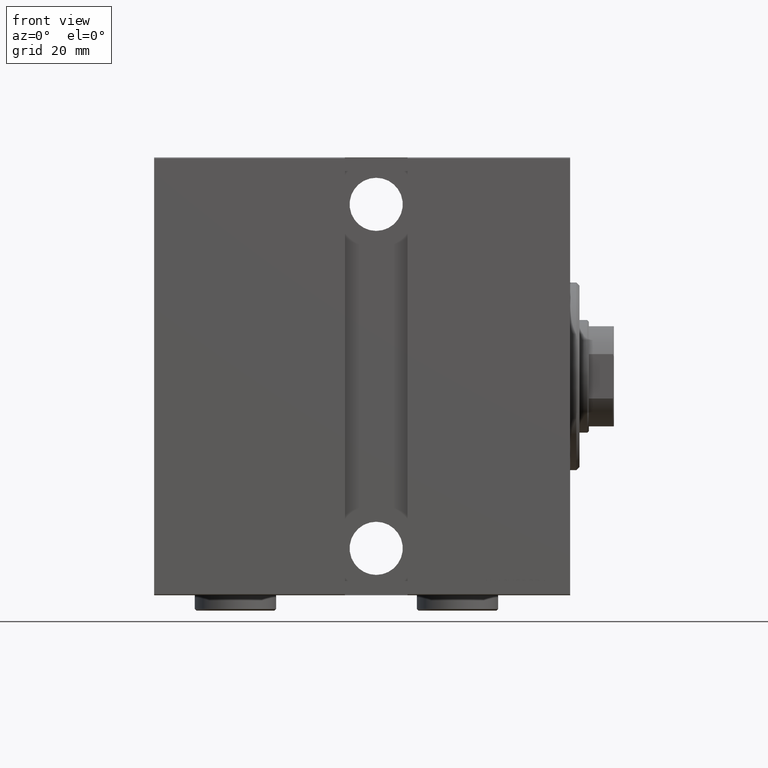
[diagram: clean part render]
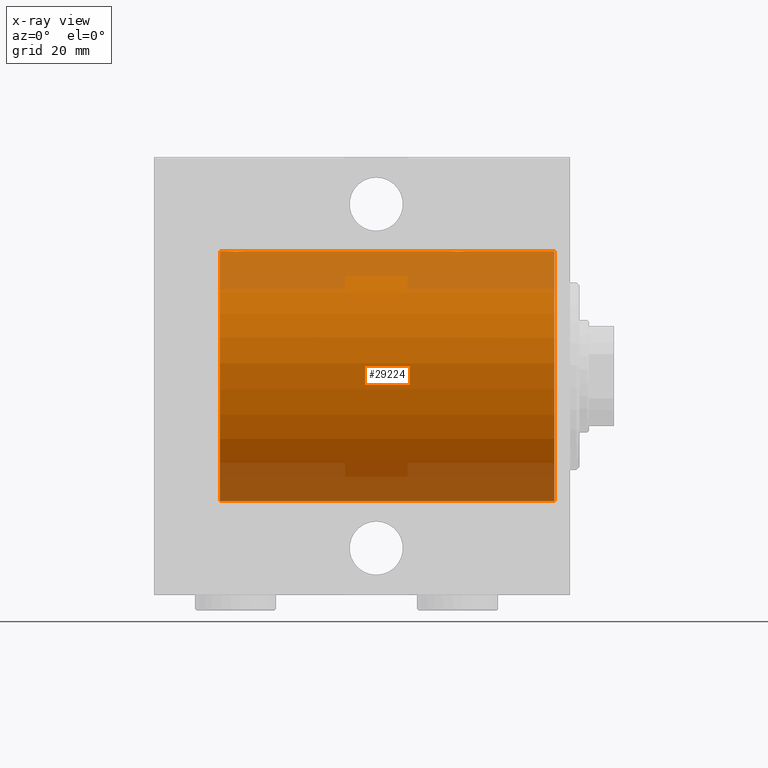
[diagram: x-ray — body ghosted, one internal face saturated and labeled with its STEP entity id]
A machine part, front view, then the same camera in x-ray: the body is ghosted and one INTERNAL B-rep face — a face not visible from any outside direction — is saturated and labeled: STEP entity #29224.
In plain terms, the highlighted cylindrical surface (partial cylindrical patch) has radius 40 mm, axis along (1, 0, -0).
Its self-contained STEP definition (entity closure, byte-faithful):
#48 = ORIENTED_EDGE ( 'NONE', *, *, #10711, .T. ) ;
#215 = CARTESIAN_POINT ( 'NONE',  ( 105.1706818041053992, 2.385749008316982778, 39.92893738690724348 ) ) ;
#352 = CARTESIAN_POINT ( 'NONE',  ( 37.98255211990295521, 2.260036752248975933, 39.93634209860680073 ) ) ;
#442 = CARTESIAN_POINT ( 'NONE',  ( 104.0963550461225395, 0.7792872749133290533, 39.99287049138470707 ) ) ;
#720 = LINE ( 'NONE', #4488, #34736 ) ;
#872 = CARTESIAN_POINT ( 'NONE',  ( 109.2592951265791186, 1.983397227149403141, 39.95103655448513535 ) ) ;
#1323 = B_SPLINE_CURVE_WITH_KNOTS ( 'NONE', 3,
 ( #14442, #34309, #17362, #17800, #37430, #27384, #34096, #38091, #872, #30725, #13795, #37868, #28032, #10005, #23587, #3563, #23816, #37201, #17141, #3337, #16922, #3781, #30511, #215, #40983, #10458, #24045, #37654, #7126, #30951, #442, #14024, #27608, #10681 ),
 .UNSPECIFIED., .F., .F.,
 ( 4, 2, 2, 2, 2, 2, 2, 2, 2, 2, 2, 2, 2, 2, 2, 2, 4 ),
 ( 2.715985185341829715E-18, 0.0005864162728940710331, 0.001172832545788139464, 0.001759248818682207678, 0.002345665091576275459, 0.002932081364470344106, 0.003518497637364412754, 0.004104913910258481402, 0.004691330183152550917, 0.005277746456046619565, 0.005864162728940688213, 0.006450579001834755993, 0.007036995274728823774, 0.007623411547622892422, 0.008209827820516961069, 0.008796244093411030585, 0.009382660366305098365 ),
 .UNSPECIFIED. ) ;
#1470 = VERTEX_POINT ( 'NONE', #3052 ) ;
#1494 = DIRECTION ( 'NONE',  ( -1.000000000000000000, -0.000000000000000000, -0.000000000000000000 ) ) ;
#2403 = CARTESIAN_POINT ( 'NONE',  ( 5.000000000000004441, 4.898587196589413026E-15, -40.00000000000000000 ) ) ;
#2812 = DIRECTION ( 'NONE',  ( 0.000000000000000000, 0.000000000000000000, 1.000000000000000000 ) ) ;
#3052 = CARTESIAN_POINT ( 'NONE',  ( 104.0000000000000142, -1.483492375313373751E-23, 40.00000000000000000 ) ) ;
#3337 = CARTESIAN_POINT ( 'NONE',  ( 106.2216664113802551, 2.903909245874804590, 39.89447063612583122 ) ) ;
#3387 = ORIENTED_EDGE ( 'NONE', *, *, #12803, .F. ) ;
#3563 = CARTESIAN_POINT ( 'NONE',  ( 107.3915424209010041, 2.980886287300816839, 39.88879301994635540 ) ) ;
#3781 = CARTESIAN_POINT ( 'NONE',  ( 105.6713074388765961, 2.696891635062809378, 39.90905226542625428 ) ) ;
#4247 = CARTESIAN_POINT ( 'NONE',  ( 112.0000000000000000, 0.000000000000000000, 40.00000000000000000 ) ) ;
#4348 = CARTESIAN_POINT ( 'NONE',  ( 36.19682449776939848, 2.999929504480790765, 39.88734665245503663 ) ) ;
#4488 = CARTESIAN_POINT ( 'NONE',  ( 112.0000000000000000, 0.000000000000000000, 40.00000000000000000 ) ) ;
#4622 = CYLINDRICAL_SURFACE ( 'NONE', #26669, 40.00000000000000000 ) ;
#4917 = ORIENTED_EDGE ( 'NONE', *, *, #34604, .T. ) ;
#5218 = CARTESIAN_POINT ( 'NONE',  ( 32.99999999999999289, -1.483452932268112700E-23, 40.00000000000000000 ) ) ;
#5473 = CIRCLE ( 'NONE', #28222, 40.00000000000000000 ) ;
#5718 = DIRECTION ( 'NONE',  ( -1.000000000000000000, 0.000000000000000000, 0.000000000000000000 ) ) ;
#7038 = CARTESIAN_POINT ( 'NONE',  ( 38.38599102747434699, 1.829066045078048486, 39.95849278436325136 ) ) ;
#7126 = CARTESIAN_POINT ( 'NONE',  ( 104.3036467693047342, 1.329803094607259206, 39.97830262548651348 ) ) ;
#7697 = CARTESIAN_POINT ( 'NONE',  ( 36.39154242090099700, 2.980886287300807513, 39.88879301994634119 ) ) ;
#8121 = CARTESIAN_POINT ( 'NONE',  ( 34.17068180410539213, 2.385749008316980557, 39.92893738690724348 ) ) ;
#8401 = DIRECTION ( 'NONE',  ( 0.000000000000000000, 0.000000000000000000, 1.000000000000000000 ) ) ;
#9250 = EDGE_CURVE ( 'NONE', #1470, #10494, #720, .T. ) ;
#10005 = CARTESIAN_POINT ( 'NONE',  ( 107.9680084476328688, 2.846249845702963466, 39.89867772821340708 ) ) ;
#10163 = EDGE_LOOP ( 'NONE', ( #3387, #15310, #29561, #48, #25897, #24101, #32259, #4917 ) ) ;
#10366 = CARTESIAN_POINT ( 'NONE',  ( 38.69591204181048028, 1.330687358699879308, 39.97827280031937391 ) ) ;
#10458 = CARTESIAN_POINT ( 'NONE',  ( 104.7390160613683321, 1.981711254113865950, 39.95112616827062624 ) ) ;
#10494 = VERTEX_POINT ( 'NONE', #20980 ) ;
#10681 = CARTESIAN_POINT ( 'NONE',  ( 104.0000000000000142, -1.483492375313373751E-23, 40.00000000000000000 ) ) ;
#10711 = EDGE_CURVE ( 'NONE', #30702, #1470, #1323, .T. ) ;
#10866 = VECTOR ( 'NONE', #40275, 1000.000000000000000 ) ;
#10893 = VERTEX_POINT ( 'NONE', #2403 ) ;
#11247 = CARTESIAN_POINT ( 'NONE',  ( 35.22166641138024090, 2.903909245874795264, 39.89447063612583122 ) ) ;
#11458 = CARTESIAN_POINT ( 'NONE',  ( 34.49570643139941950, 2.602941461497643605, 39.91536715259250911 ) ) ;
#11554 = B_SPLINE_CURVE_WITH_KNOTS ( 'NONE', 3,
 ( #27941, #13706, #44024, #13494, #40889, #10366, #23950, #7038, #30857, #352, #13934, #17927, #11675, #18371, #42198, #7697, #4348, #31975, #38223, #11247, #31518, #21281, #11458, #8121, #28167, #18151, #12123, #38440, #25263, #21715, #28821, #24833, #42646, #5218 ),
 .UNSPECIFIED., .F., .F.,
 ( 4, 2, 2, 2, 2, 2, 2, 2, 2, 2, 2, 2, 2, 2, 2, 2, 4 ),
 ( 2.979387612717195144E-18, 0.0005864162728940701657, 0.001172832545788137512, 0.001759248818682204859, 0.002345665091576272423, 0.002932081364470340203, 0.003518497637364407116, 0.004104913910258473596, 0.004691330183152541376, 0.005277746456046609157, 0.005864162728940676070, 0.006450579001834742983, 0.007036995274728809896, 0.007623411547622876809, 0.008209827820516945457, 0.008796244093411013237, 0.009382660366305081018 ),
 .UNSPECIFIED. ) ;
#11675 = CARTESIAN_POINT ( 'NONE',  ( 37.32902305536723020, 2.696641662727002675, 39.90906847305313221 ) ) ;
#12123 = CARTESIAN_POINT ( 'NONE',  ( 33.61483062030600166, 1.830069308885369006, 39.95844440547435994 ) ) ;
#12327 = VECTOR ( 'NONE', #38985, 1000.000000000000000 ) ;
#12656 = CARTESIAN_POINT ( 'NONE',  ( 112.0000000000000000, 0.000000000000000000, 40.00000000000000000 ) ) ;
#12803 = EDGE_CURVE ( 'NONE', #23875, #10893, #27334, .T. ) ;
#13494 = CARTESIAN_POINT ( 'NONE',  ( 38.90427371185431582, 0.7768046863726097984, 39.99291636985139320 ) ) ;
#13706 = CARTESIAN_POINT ( 'NONE',  ( 39.00000000000000000, 0.1982918730505185412, 40.00000000000000000 ) ) ;
#13795 = CARTESIAN_POINT ( 'NONE',  ( 108.8315373355074769, 2.384195078505191301, 39.92903310064217948 ) ) ;
#13934 = CARTESIAN_POINT ( 'NONE',  ( 37.83153733550743425, 2.384195078505188192, 39.92903310064217237 ) ) ;
#14024 = CARTESIAN_POINT ( 'NONE',  ( 104.0196258769033761, 0.3947312521144685782, 39.99851454786933402 ) ) ;
#14442 = CARTESIAN_POINT ( 'NONE',  ( 110.0000000000000142, -2.794909241144302331E-15, 40.00000000000000000 ) ) ;
#14858 = CARTESIAN_POINT ( 'NONE',  ( 112.0000000000000000, 0.000000000000000000, 0.000000000000000000 ) ) ;
#15310 = ORIENTED_EDGE ( 'NONE', *, *, #38279, .F. ) ;
#16431 = DIRECTION ( 'NONE',  ( -1.000000000000000000, -0.000000000000000000, -0.000000000000000000 ) ) ;
#16753 = CIRCLE ( 'NONE', #41658, 40.00000000000000000 ) ;
#16922 = CARTESIAN_POINT ( 'NONE',  ( 106.0346170223974980, 2.847223932150715342, 39.89860891179019120 ) ) ;
#17141 = CARTESIAN_POINT ( 'NONE',  ( 106.6064979360705109, 2.980544951704990897, 39.88881833341081062 ) ) ;
#17362 = CARTESIAN_POINT ( 'NONE',  ( 109.9805336956898287, 0.3932559001416439104, 39.99852666141217128 ) ) ;
#17800 = CARTESIAN_POINT ( 'NONE',  ( 109.9042737118543300, 0.7768046863726105755, 39.99291636985139320 ) ) ;
#17927 = CARTESIAN_POINT ( 'NONE',  ( 37.50356430083394343, 2.603499486649420103, 39.91533365697404889 ) ) ;
#18151 = CARTESIAN_POINT ( 'NONE',  ( 33.73901606136833209, 1.981711254113868170, 39.95112616827061203 ) ) ;
#18371 = CARTESIAN_POINT ( 'NONE',  ( 36.96800844763286875, 2.846249845702961689, 39.89867772821342129 ) ) ;
#18544 = EDGE_CURVE ( 'NONE', #43014, #30702, #32298, .T. ) ;
#20388 = VECTOR ( 'NONE', #16431, 1000.000000000000000 ) ;
#20980 = CARTESIAN_POINT ( 'NONE',  ( 39.00000000000000000, -1.886242593979369380E-15, 40.00000000000000000 ) ) ;
#21132 = CARTESIAN_POINT ( 'NONE',  ( 5.000000000000004441, 0.000000000000000000, 0.000000000000000000 ) ) ;
#21281 = CARTESIAN_POINT ( 'NONE',  ( 34.67130743887656763, 2.696891635062800052, 39.90905226542625428 ) ) ;
#21715 = CARTESIAN_POINT ( 'NONE',  ( 33.15308566639104981, 0.9663207501652049114, 39.98873943115997065 ) ) ;
#22960 = CARTESIAN_POINT ( 'NONE',  ( 32.99999999999999289, -1.483452932268112700E-23, 40.00000000000000000 ) ) ;
#23294 = CARTESIAN_POINT ( 'NONE',  ( 112.0000000000000000, 4.898587196589413026E-15, -40.00000000000000000 ) ) ;
#23587 = CARTESIAN_POINT ( 'NONE',  ( 107.7788663188552363, 2.903851887155399769, 39.89447500423337090 ) ) ;
#23816 = CARTESIAN_POINT ( 'NONE',  ( 107.1968244977694127, 2.999929504480796982, 39.88734665245503663 ) ) ;
#23875 = VERTEX_POINT ( 'NONE', #23294 ) ;
#23950 = CARTESIAN_POINT ( 'NONE',  ( 38.60374115178255749, 1.502986292339231200, 39.97208601512195969 ) ) ;
#24045 = CARTESIAN_POINT ( 'NONE',  ( 104.6148306203060088, 1.830069308885365231, 39.95844440547435994 ) ) ;
#24101 = ORIENTED_EDGE ( 'NONE', *, *, #28542, .T. ) ;
#24833 = CARTESIAN_POINT ( 'NONE',  ( 33.01962587690334772, 0.3947312521144651365, 39.99851454786935534 ) ) ;
#25263 = CARTESIAN_POINT ( 'NONE',  ( 33.30364676930471290, 1.329803094607256986, 39.97830262548651348 ) ) ;
#25437 = CARTESIAN_POINT ( 'NONE',  ( 110.0000000000000142, -2.794909241144302331E-15, 40.00000000000000000 ) ) ;
#25897 = ORIENTED_EDGE ( 'NONE', *, *, #9250, .T. ) ;
#26669 = AXIS2_PLACEMENT_3D ( 'NONE', #14858, #1494, #8401 ) ;
#27334 = LINE ( 'NONE', #30467, #10866 ) ;
#27384 = CARTESIAN_POINT ( 'NONE',  ( 109.6959120418104732, 1.330687358699877088, 39.97827280031935970 ) ) ;
#27538 = VERTEX_POINT ( 'NONE', #22960 ) ;
#27608 = CARTESIAN_POINT ( 'NONE',  ( 104.0000000000000142, 0.1958295874890002564, 40.00000000000000711 ) ) ;
#27941 = CARTESIAN_POINT ( 'NONE',  ( 39.00000000000000000, -1.886242593979369380E-15, 40.00000000000000000 ) ) ;
#28032 = CARTESIAN_POINT ( 'NONE',  ( 108.3290230553672728, 2.696641662727002675, 39.90906847305313221 ) ) ;
#28167 = CARTESIAN_POINT ( 'NONE',  ( 34.01917014396114780, 2.261756164323879936, 39.93625070860935722 ) ) ;
#28222 = AXIS2_PLACEMENT_3D ( 'NONE', #38967, #5718, #2812 ) ;
#28311 = DIRECTION ( 'NONE',  ( -1.000000000000000000, -0.000000000000000000, -0.000000000000000000 ) ) ;
#28542 = EDGE_CURVE ( 'NONE', #10494, #27538, #11554, .T. ) ;
#28821 = CARTESIAN_POINT ( 'NONE',  ( 33.09635504612251822, 0.7792872749133258337, 39.99287049138470707 ) ) ;
#29224 = ADVANCED_FACE ( 'NONE', ( #42260 ), #4622, .F. ) ;
#29561 = ORIENTED_EDGE ( 'NONE', *, *, #18544, .T. ) ;
#30467 = CARTESIAN_POINT ( 'NONE',  ( 112.0000000000000000, 4.898587196589413026E-15, -40.00000000000000000 ) ) ;
#30511 = CARTESIAN_POINT ( 'NONE',  ( 105.4957064313994550, 2.602941461497645825, 39.91536715259250911 ) ) ;
#30702 = VERTEX_POINT ( 'NONE', #25437 ) ;
#30725 = CARTESIAN_POINT ( 'NONE',  ( 108.9825521199029623, 2.260036752248979042, 39.93634209860677942 ) ) ;
#30857 = CARTESIAN_POINT ( 'NONE',  ( 38.25929512657906884, 1.983397227149400033, 39.95103655448513535 ) ) ;
#30951 = CARTESIAN_POINT ( 'NONE',  ( 104.1530856663910782, 0.9663207501652070208, 39.98873943115997776 ) ) ;
#31518 = CARTESIAN_POINT ( 'NONE',  ( 35.03461702239747666, 2.847223932150706460, 39.89860891179019120 ) ) ;
#31975 = CARTESIAN_POINT ( 'NONE',  ( 35.80533038627240927, 3.000070108558746007, 39.88733607736548237 ) ) ;
#32259 = ORIENTED_EDGE ( 'NONE', *, *, #37162, .T. ) ;
#32298 = LINE ( 'NONE', #4247, #12327 ) ;
#32499 = LINE ( 'NONE', #12656, #20388 ) ;
#34096 = CARTESIAN_POINT ( 'NONE',  ( 109.6037411517825717, 1.502986292339234087, 39.97208601512195258 ) ) ;
#34309 = CARTESIAN_POINT ( 'NONE',  ( 110.0000000000000426, 0.1982918730505192351, 40.00000000000000000 ) ) ;
#34604 = EDGE_CURVE ( 'NONE', #42287, #10893, #16753, .T. ) ;
#34736 = VECTOR ( 'NONE', #28311, 1000.000000000000000 ) ;
#37162 = EDGE_CURVE ( 'NONE', #27538, #42287, #32499, .T. ) ;
#37201 = CARTESIAN_POINT ( 'NONE',  ( 106.8053303862724590, 3.000070108558753557, 39.88733607736548237 ) ) ;
#37413 = DIRECTION ( 'NONE',  ( 0.000000000000000000, 0.000000000000000000, 1.000000000000000000 ) ) ;
#37430 = CARTESIAN_POINT ( 'NONE',  ( 109.8465492456673900, 0.9673820216299532371, 39.98871336974454493 ) ) ;
#37654 = CARTESIAN_POINT ( 'NONE',  ( 104.3975786190233777, 1.505187563391992223, 39.97200074276641146 ) ) ;
#37868 = CARTESIAN_POINT ( 'NONE',  ( 108.5035643008339861, 2.603499486649422767, 39.91533365697403468 ) ) ;
#38091 = CARTESIAN_POINT ( 'NONE',  ( 109.3859910274744180, 1.829066045078054037, 39.95849278436327268 ) ) ;
#38223 = CARTESIAN_POINT ( 'NONE',  ( 35.60649793607048963, 2.980544951704983347, 39.88881833341081062 ) ) ;
#38279 = EDGE_CURVE ( 'NONE', #43014, #23875, #5473, .T. ) ;
#38440 = CARTESIAN_POINT ( 'NONE',  ( 33.39757861902340608, 1.505187563391996886, 39.97200074276641146 ) ) ;
#38967 = CARTESIAN_POINT ( 'NONE',  ( 112.0000000000000000, 0.000000000000000000, 0.000000000000000000 ) ) ;
#38985 = DIRECTION ( 'NONE',  ( -1.000000000000000000, -0.000000000000000000, -0.000000000000000000 ) ) ;
#39149 = CARTESIAN_POINT ( 'NONE',  ( 5.000000000000004441, 0.000000000000000000, 40.00000000000000000 ) ) ;
#40275 = DIRECTION ( 'NONE',  ( -1.000000000000000000, -0.000000000000000000, -0.000000000000000000 ) ) ;
#40736 = DIRECTION ( 'NONE',  ( -1.000000000000000000, 0.000000000000000000, 0.000000000000000000 ) ) ;
#40786 = CARTESIAN_POINT ( 'NONE',  ( 112.0000000000000000, 0.000000000000000000, 40.00000000000000000 ) ) ;
#40889 = CARTESIAN_POINT ( 'NONE',  ( 38.84654924566737577, 0.9673820216299560126, 39.98871336974455204 ) ) ;
#40983 = CARTESIAN_POINT ( 'NONE',  ( 105.0191701439611478, 2.261756164323879492, 39.93625070860935722 ) ) ;
#41658 = AXIS2_PLACEMENT_3D ( 'NONE', #21132, #40736, #37413 ) ;
#42198 = CARTESIAN_POINT ( 'NONE',  ( 36.77886631885523627, 2.903851887155389555, 39.89447500423338511 ) ) ;
#42260 = FACE_OUTER_BOUND ( 'NONE', #10163, .T. ) ;
#42287 = VERTEX_POINT ( 'NONE', #39149 ) ;
#42646 = CARTESIAN_POINT ( 'NONE',  ( 33.00000000000000000, 0.1958295874890013111, 39.99999999999999289 ) ) ;
#43014 = VERTEX_POINT ( 'NONE', #40786 ) ;
#44024 = CARTESIAN_POINT ( 'NONE',  ( 38.98053369568979321, 0.3932559001416437439, 39.99852666141217128 ) ) ;